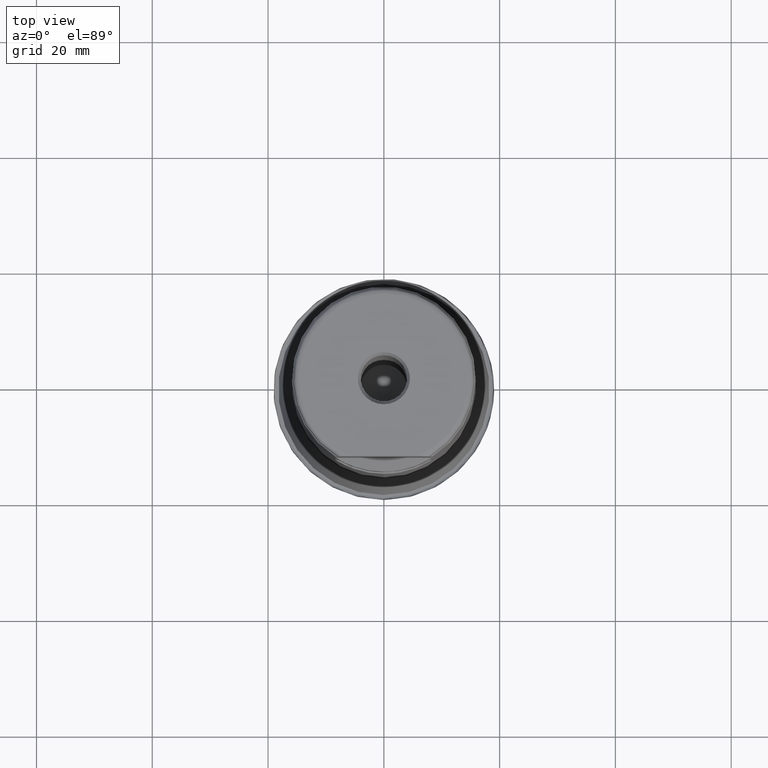
[diagram: clean part render]
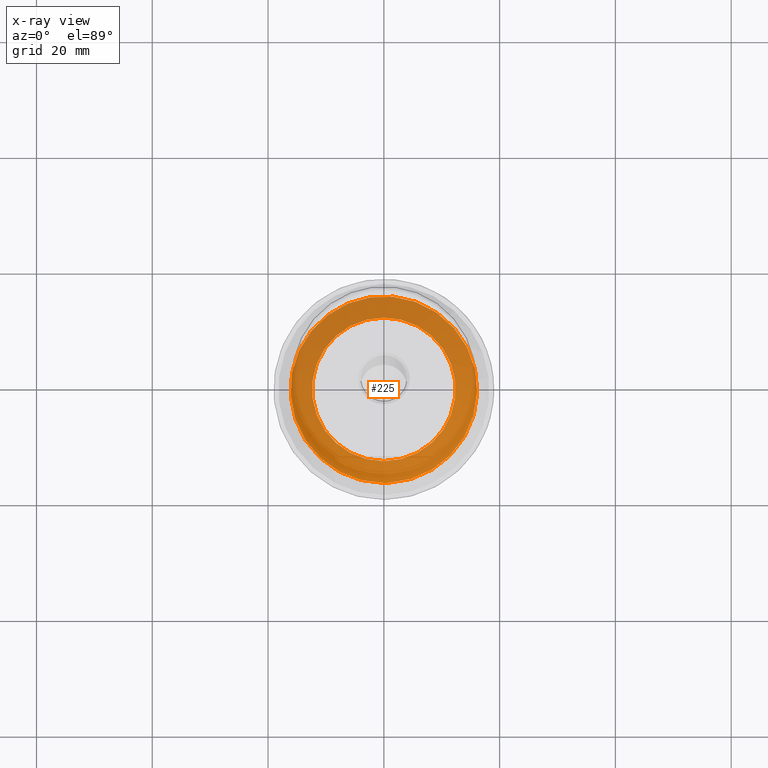
[diagram: x-ray — body ghosted, one internal face saturated and labeled with its STEP entity id]
A machine part, top view, then the same camera in x-ray: the body is ghosted and one INTERNAL B-rep face — a face not visible from any outside direction — is saturated and labeled: STEP entity #225.
In plain terms, the highlighted face is a SurfaceOfRevolution surface.
Its self-contained STEP definition (entity closure, byte-faithful):
#116=SURFACE_OF_REVOLUTION('',#801,#137);
#137=AXIS1_PLACEMENT('',#1576,#1039);
#225=ADVANCED_FACE('',(#343,#344),#116,.F.);
#275=CIRCLE('',#873,16.1234573241375);
#276=CIRCLE('',#874,12.3973182417561);
#343=FACE_BOUND('',#433,.T.);
#344=FACE_BOUND('',#434,.T.);
#433=EDGE_LOOP('',(#610));
#434=EDGE_LOOP('',(#611));
#610=ORIENTED_EDGE('',*,*,#751,.T.);
#611=ORIENTED_EDGE('',*,*,#752,.F.);
#683=VERTEX_POINT('',#1555);
#684=VERTEX_POINT('',#1563);
#751=EDGE_CURVE('',#683,#683,#275,.T.);
#752=EDGE_CURVE('',#684,#684,#276,.T.);
#801=B_SPLINE_CURVE_WITH_KNOTS('',3,(#1564,#1565,#1566,#1567,#1568,#1569,
#1570,#1571,#1572,#1573,#1574,#1575),.UNSPECIFIED.,.F.,.F.,(4,1,1,1,1,1,
1,1,1,4),(0.,0.0557572126970923,0.0918984441691398,0.128039675641187,0.200322138585283,
0.344887064473473,0.489451990361663,0.634016916249853,0.778581842138044,
1.),.UNSPECIFIED.);
#873=AXIS2_PLACEMENT_3D('',#1554,#1034,#1035);
#874=AXIS2_PLACEMENT_3D('',#1562,#1037,#1038);
#1034=DIRECTION('',(0.,1.17145536458252E-15,1.));
#1035=DIRECTION('',(0.,-1.,1.17004172380609E-15));
#1037=DIRECTION('',(0.,1.17145536458252E-15,1.));
#1038=DIRECTION('',(0.,-1.,1.15440036286279E-15));
#1039=DIRECTION('',(0.,1.17145536458252E-15,1.));
#1554=CARTESIAN_POINT('',(0.,5.60594969647001E-16,0.478545736009995));
#1555=CARTESIAN_POINT('',(0.,-16.1234573241375,0.478545736010014));
#1562=CARTESIAN_POINT('',(0.,3.34107816574671E-15,2.85207466435341));
#1563=CARTESIAN_POINT('',(0.,-12.3973182417561,2.85207466435343));
#1564=CARTESIAN_POINT('',(12.1402453693947,-2.51156503660023,2.85207479553912));
#1565=CARTESIAN_POINT('',(12.210496371179,-2.52242149238919,2.80914575600486));
#1566=CARTESIAN_POINT('',(12.3261613474228,-2.53887269992321,2.73795674590964));
#1567=CARTESIAN_POINT('',(12.4848209892905,-2.53934790228725,2.63210341039476));
#1568=CARTESIAN_POINT('',(12.664226759374,-2.54164521131927,2.5134223590947));
#1569=CARTESIAN_POINT('',(12.9784371592993,-2.54471779333777,2.30602234107149));
#1570=CARTESIAN_POINT('',(13.4282446001825,-2.54924022485581,2.01117221635205));
#1571=CARTESIAN_POINT('',(13.9702668131219,-2.55394005409501,1.66080617803922));
#1572=CARTESIAN_POINT('',(14.5163508020418,-2.557497193926,1.31680146049883));
#1573=CARTESIAN_POINT('',(15.1645741968982,-2.56014319568834,0.92048185369906));
#1574=CARTESIAN_POINT('',(15.6338005446121,-2.56070689532539,0.643912316196952));
#1575=CARTESIAN_POINT('',(15.9188148130003,-2.56070518269578,0.478545736009998));
#1576=CARTESIAN_POINT('',(0.,0.,0.));